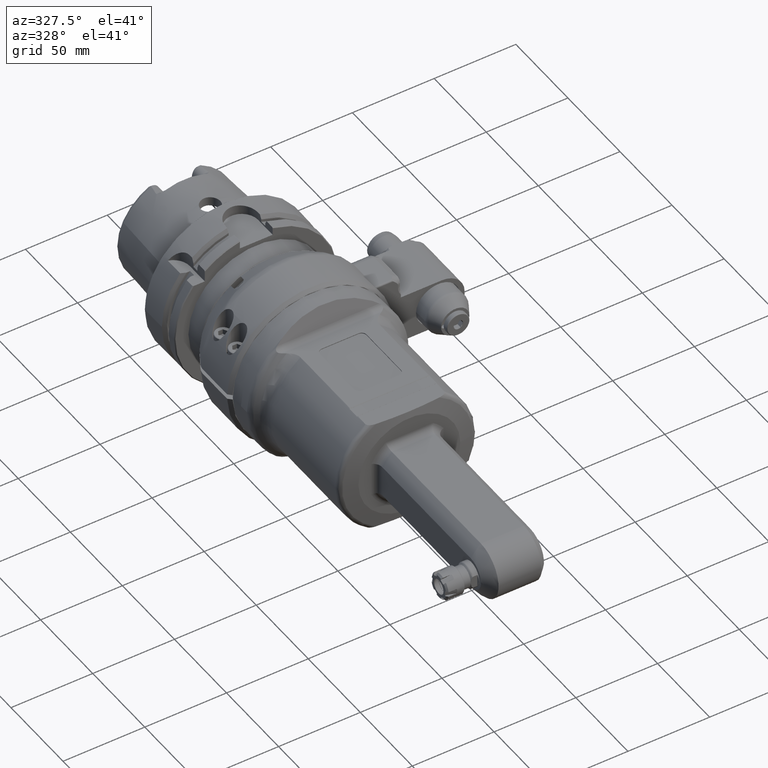
[diagram: clean part render]
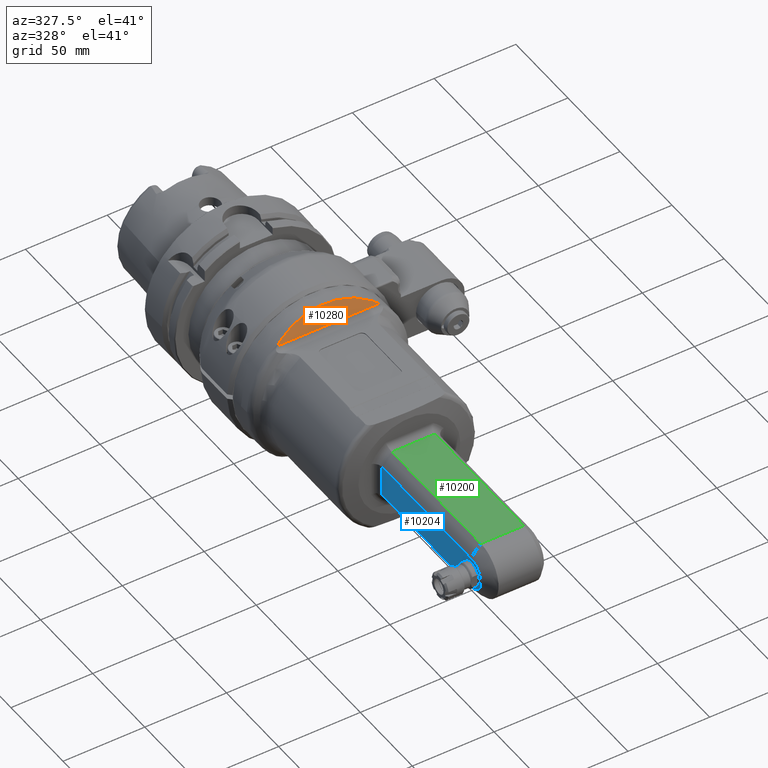
[diagram: same view with three faces highlighted in distinct colors, each labeled with its STEP entity id]
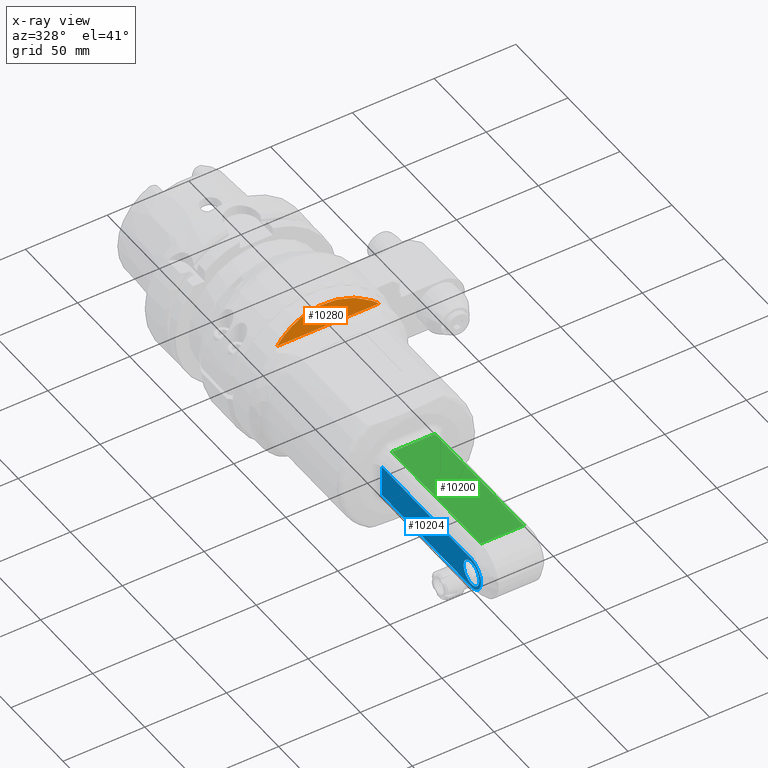
[diagram: x-ray of the same camera — body ghosted, the three highlighted faces saturated]
A machine part, auxiliary view with three faces highlighted in distinct colors.
The next image is the same camera in x-ray (body ghosted, the three faces saturated) — at least one of them is partly hidden behind the body in this view.
Their STEP definitions:

[orange] entity #10280 — the highlighted planar face has unit normal (-0, 0.9397, -0.342).
#42=ELLIPSE('',#11082,52.1447108513203,49.);
#320=B_SPLINE_CURVE_WITH_KNOTS('',3,(#15265,#15266,#15267,#15268),
 .UNSPECIFIED.,.F.,.F.,(4,4),(-11.3072401034137,-10.8624561647183),
 .UNSPECIFIED.);
#367=B_SPLINE_CURVE_WITH_KNOTS('',3,(#16179,#16180,#16181,#16182),
 .UNSPECIFIED.,.F.,.F.,(4,4),(4.90730078062697,5.35208471933222),
 .UNSPECIFIED.);
#1399=FACE_OUTER_BOUND('',#2049,.T.);
#2049=EDGE_LOOP('',(#7306,#7307,#7308,#7309));
#2696=LINE('',#15226,#3448);
#3448=VECTOR('',#12091,62.42037155704);
#4205=VERTEX_POINT('',#15214);
#4206=VERTEX_POINT('',#15225);
#4211=VERTEX_POINT('',#15264);
#4366=VERTEX_POINT('',#16177);
#5241=EDGE_CURVE('',#4205,#4206,#2696,.T.);
#5248=EDGE_CURVE('',#4206,#4211,#320,.T.);
#5487=EDGE_CURVE('',#4205,#4366,#367,.T.);
#5488=EDGE_CURVE('',#4366,#4211,#42,.T.);
#7306=ORIENTED_EDGE('',*,*,#5488,.T.);
#7307=ORIENTED_EDGE('',*,*,#5248,.F.);
#7308=ORIENTED_EDGE('',*,*,#5241,.F.);
#7309=ORIENTED_EDGE('',*,*,#5487,.T.);
#9926=PLANE('',#11081);
#10280=ADVANCED_FACE('',(#1399),#9926,.F.);
#11081=AXIS2_PLACEMENT_3D('',#16183,#12568,#12569);
#11082=AXIS2_PLACEMENT_3D('',#16184,#12570,#12571);
#12091=DIRECTION('',(-3.553830849943E-13,-1.,1.008891826491E-12));
#12568=DIRECTION('center_axis',(-0.939692620785897,0.,-0.342020143325699));
#12569=DIRECTION('ref_axis',(0.342020143325699,0.,-0.939692620785897));
#12570=DIRECTION('center_axis',(0.939692620785897,0.,0.342020143325699));
#12571=DIRECTION('ref_axis',(0.342020143325699,0.,-0.939692620785897));
#15214=CARTESIAN_POINT('',(2.972751717779,31.21018577856,37.6319194267));
#15225=CARTESIAN_POINT('',(2.972751717757,-31.21018577848,37.63191942676));
#15226=CARTESIAN_POINT('',(2.972751717779,31.21018577856,37.6319194267));
#15264=CARTESIAN_POINT('',(1.929964927799,-27.58617101538,40.49695258547));
#15265=CARTESIAN_POINT('Ctrl Pts',(2.97275171775456,-31.2101857784854,37.631919426765));
#15266=CARTESIAN_POINT('Ctrl Pts',(2.5849637859959,-30.0550640941007,38.6973580128088));
#15267=CARTESIAN_POINT('Ctrl Pts',(2.23078490428043,-28.7994808676137,39.6704564927696));
#15268=CARTESIAN_POINT('Ctrl Pts',(1.92996492779892,-27.5861710153823,40.4969525854734));
#16177=CARTESIAN_POINT('',(1.929964927798,27.58617101538,40.49695258548));
#16179=CARTESIAN_POINT('Ctrl Pts',(2.97275171777897,31.2101857785581,37.6319194266979));
#16180=CARTESIAN_POINT('Ctrl Pts',(2.58496378601031,30.0550640941517,38.6973580127692));
#16181=CARTESIAN_POINT('Ctrl Pts',(2.23078490428584,28.799480867636,39.6704564927548));
#16182=CARTESIAN_POINT('Ctrl Pts',(1.92996492779777,27.5861710153777,40.4969525854765));
#16183=CARTESIAN_POINT('Origin',(-5.981507718751,-58.8000024,62.2335450365));
#16184=CARTESIAN_POINT('Origin',(16.6696502474024,0.,0.));

[blue] entity #10204 — the highlighted planar face has unit normal (1, 0, -0).
#209=FACE_BOUND('',#1965,.T.);
#808=CIRCLE('',#10936,9.575359001103);
#809=CIRCLE('',#10937,7.5);
#1323=FACE_OUTER_BOUND('',#1964,.T.);
#1964=EDGE_LOOP('',(#6946,#6947,#6948,#6949));
#1965=EDGE_LOOP('',(#6950));
#2724=LINE('',#15554,#3476);
#2725=LINE('',#15589,#3477);
#2726=LINE('',#15606,#3478);
#3476=VECTOR('',#12209,85.395);
#3477=VECTOR('',#12216,19.15071800221);
#3478=VECTOR('',#12219,85.395);
#4266=VERTEX_POINT('',#15551);
#4267=VERTEX_POINT('',#15553);
#4268=VERTEX_POINT('',#15588);
#4269=VERTEX_POINT('',#15605);
#4270=VERTEX_POINT('',#15608);
#5321=EDGE_CURVE('',#4266,#4267,#2724,.T.);
#5325=EDGE_CURVE('',#4268,#4266,#2725,.T.);
#5327=EDGE_CURVE('',#4269,#4268,#2726,.T.);
#5328=EDGE_CURVE('',#4269,#4267,#808,.T.);
#5329=EDGE_CURVE('',#4270,#4270,#809,.T.);
#6946=ORIENTED_EDGE('',*,*,#5325,.F.);
#6947=ORIENTED_EDGE('',*,*,#5327,.F.);
#6948=ORIENTED_EDGE('',*,*,#5328,.T.);
#6949=ORIENTED_EDGE('',*,*,#5321,.F.);
#6950=ORIENTED_EDGE('',*,*,#5329,.T.);
#9896=PLANE('',#10935);
#10204=ADVANCED_FACE('',(#1323,#209),#9896,.F.);
#10935=AXIS2_PLACEMENT_3D('',#15604,#12217,#12218);
#10936=AXIS2_PLACEMENT_3D('',#15607,#12220,#12221);
#10937=AXIS2_PLACEMENT_3D('',#15609,#12222,#12223);
#12209=DIRECTION('',(1.,0.,0.));
#12216=DIRECTION('',(0.,0.,1.));
#12217=DIRECTION('center_axis',(0.,1.,0.));
#12218=DIRECTION('ref_axis',(1.,0.,0.));
#12219=DIRECTION('',(-1.,0.,0.));
#12220=DIRECTION('center_axis',(0.,-1.,0.));
#12221=DIRECTION('ref_axis',(2.374570764574E-14,0.,-1.));
#12222=DIRECTION('center_axis',(0.,1.,0.));
#12223=DIRECTION('ref_axis',(-1.,0.,0.));
#15551=CARTESIAN_POINT('',(85.,-19.25,9.575359001103));
#15553=CARTESIAN_POINT('',(170.395,-19.25,9.575359001103));
#15554=CARTESIAN_POINT('',(85.,-19.25,9.575359001103));
#15588=CARTESIAN_POINT('',(85.,-19.25,-9.575359001103));
#15589=CARTESIAN_POINT('',(85.,-19.25,-9.575359001103));
#15604=CARTESIAN_POINT('Origin',(84.,-19.25,-44.9234973024));
#15605=CARTESIAN_POINT('',(170.395,-19.25,-9.575359001103));
#15606=CARTESIAN_POINT('',(170.395,-19.25,-9.575359001103));
#15607=CARTESIAN_POINT('Origin',(170.395,-19.25,-2.84217094304E-14));
#15608=CARTESIAN_POINT('',(163.395,-19.25,0.));
#15609=CARTESIAN_POINT('Origin',(170.895,-19.25,0.));

[green] entity #10200 — the highlighted planar face has unit normal (-0, 0, -1).
#1319=FACE_OUTER_BOUND('',#1960,.T.);
#1960=EDGE_LOOP('',(#6930,#6931,#6932,#6933));
#2720=LINE('',#15541,#3472);
#2721=LINE('',#15546,#3473);
#2722=LINE('',#15548,#3474);
#2723=LINE('',#15549,#3475);
#3472=VECTOR('',#12195,26.32489316218);
#3473=VECTOR('',#12202,85.395);
#3474=VECTOR('',#12203,26.32489316218);
#3475=VECTOR('',#12204,85.395);
#4262=VERTEX_POINT('',#15539);
#4263=VERTEX_POINT('',#15540);
#4264=VERTEX_POINT('',#15545);
#4265=VERTEX_POINT('',#15547);
#5314=EDGE_CURVE('',#4262,#4263,#2720,.T.);
#5317=EDGE_CURVE('',#4264,#4262,#2721,.T.);
#5318=EDGE_CURVE('',#4265,#4264,#2722,.T.);
#5319=EDGE_CURVE('',#4263,#4265,#2723,.T.);
#6930=ORIENTED_EDGE('',*,*,#5314,.F.);
#6931=ORIENTED_EDGE('',*,*,#5317,.F.);
#6932=ORIENTED_EDGE('',*,*,#5318,.F.);
#6933=ORIENTED_EDGE('',*,*,#5319,.F.);
#9895=PLANE('',#10929);
#10200=ADVANCED_FACE('',(#1319),#9895,.F.);
#10929=AXIS2_PLACEMENT_3D('',#15544,#12200,#12201);
#12195=DIRECTION('',(0.,-1.,0.));
#12200=DIRECTION('center_axis',(0.,0.,-1.));
#12201=DIRECTION('ref_axis',(-1.,0.,0.));
#12202=DIRECTION('',(1.,0.,0.));
#12203=DIRECTION('',(0.,1.,0.));
#12204=DIRECTION('',(-1.,0.,0.));
#15539=CARTESIAN_POINT('',(170.395,13.16244658109,17.));
#15540=CARTESIAN_POINT('',(170.395,-13.16244658109,17.));
#15541=CARTESIAN_POINT('',(170.395,13.16244658109,17.));
#15544=CARTESIAN_POINT('Origin',(131.965,64.64325287337,17.));
#15545=CARTESIAN_POINT('',(85.,13.16244658109,17.));
#15546=CARTESIAN_POINT('',(85.,13.16244658109,17.));
#15547=CARTESIAN_POINT('',(85.,-13.16244658109,17.));
#15548=CARTESIAN_POINT('',(85.,-13.16244658109,17.));
#15549=CARTESIAN_POINT('',(170.395,-13.16244658109,17.));